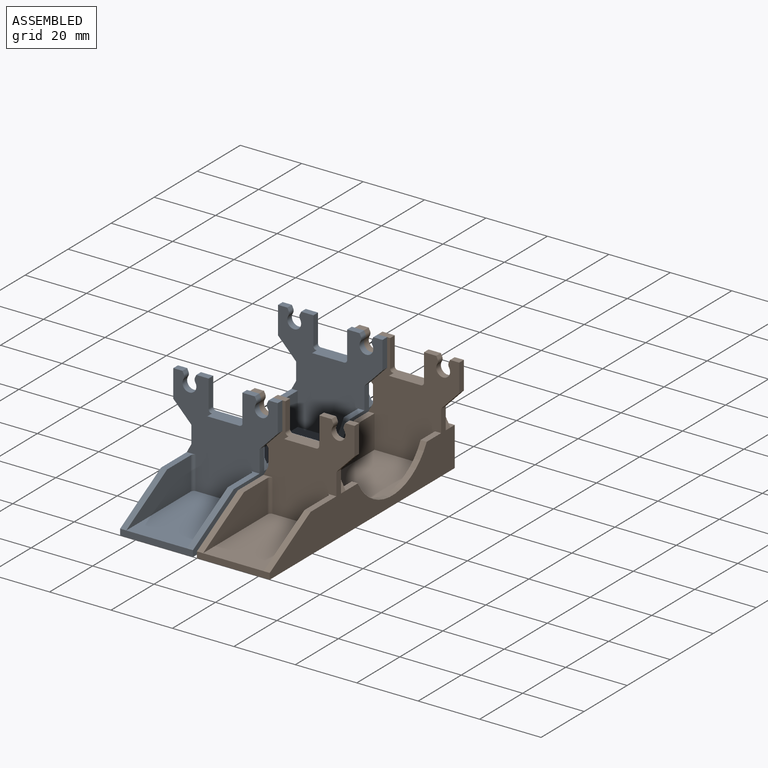
[diagram: assembled view]
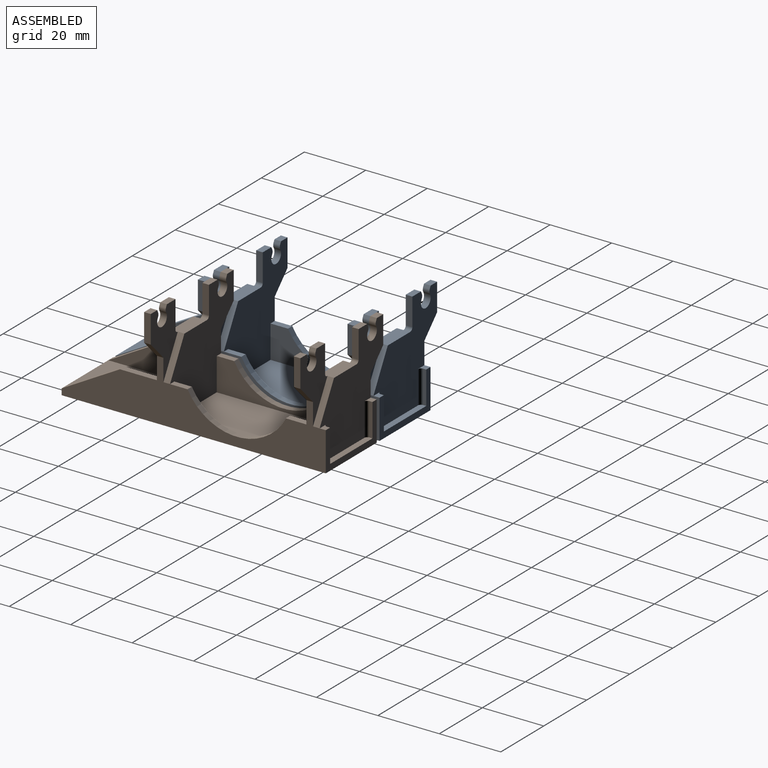
[diagram: assembled view, second angle]
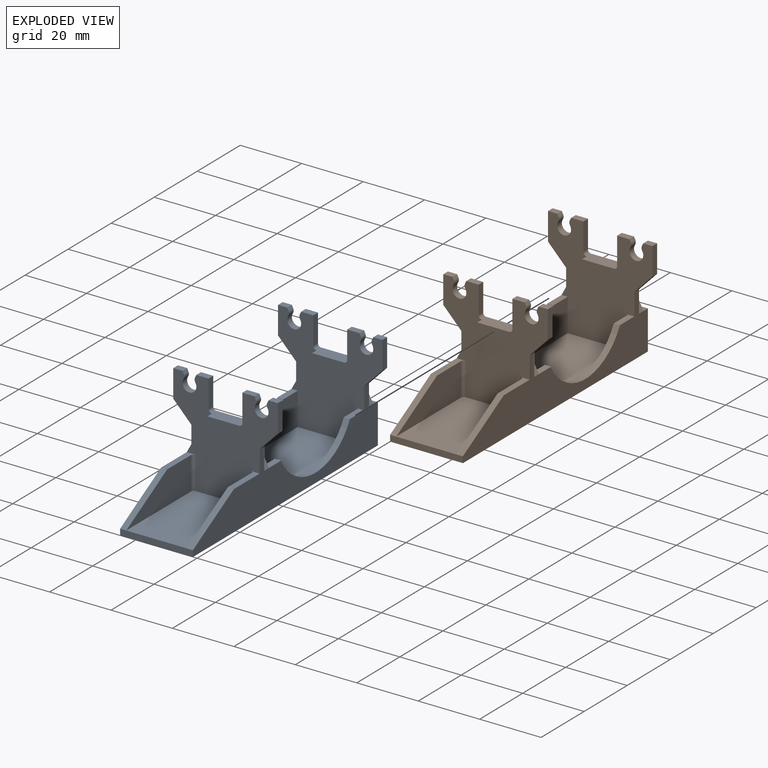
[diagram: exploded view]
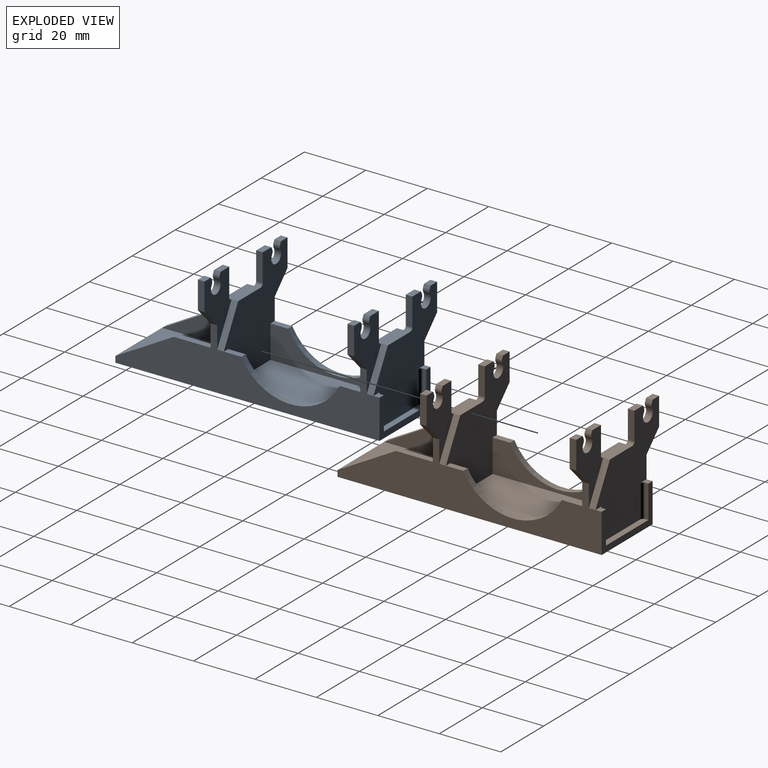
[diagram: exploded view, second angle]
ASSEMBLY  parts=2 mates=2
PART A: 88 faces, bbox 35.5x86x35 mm
  f0: plane 9x2.15mm, normal (1,0,0), area 19.4mm2, adj f2,f4,f21,f71
  f1: plane 4x2.15mm, normal (0,0,1), area 8.6mm2, adj f5,f6,f21,f71
  f2: plane 3x2.15mm, normal (0,0,1), area 6.4mm2, adj f0,f8,f21,f71
  f3: plane 10.5x4.3mm, normal (0,0,1), area 44.8mm2, adj f21,f57,f64,f65,f70,f71,f74,f75
  f4: plane 6.12x5.9mm, normal (0.72,0,-0.69), area 18.3mm2, adj f0,f21,f52,f71
  f5: plane 9x2.15mm, normal (-1,0,0), area 19.4mm2, adj f1,f21,f71,f75
  f6: plane 2.15x0.86mm, normal (0.9,0,0.44), area 2.1mm2, adj f1,f21,f71,f86
  f7: cylinder r=2.25mm len=4.5mm, axis (0,1,0), area 20.6mm2, adj f21,f71,f86,f87
  f8: plane 2.15x0.86mm, normal (-0.9,0,0.44), area 2.1mm2, adj f2,f21,f71,f87
  f9: plane 10.5x4.3mm, normal (0,0,1), area 44.8mm2, adj f15,f56,f66,f67,f68,f69,f72,f73
  f10: plane 6.12x5.9mm, normal (0.72,0,-0.69), area 18.3mm2, adj f15,f52,f61,f69
  f11: plane 9x2.15mm, normal (-1,0,0), area 19.3mm2, adj f15,f62,f69,f72
  f12: plane 2.15x0.86mm, normal (0.9,0,0.44), area 2.1mm2, adj f15,f62,f69,f82
  f13: cylinder r=2.25mm len=4.5mm, axis (0,1,0), area 20.6mm2, adj f15,f69,f82,f83
  f14: plane 2.15x0.86mm, normal (-0.9,0,0.44), area 2.1mm2, adj f15,f63,f69,f83
  f15: plane 33x29.6mm, normal (0,-1,0), area 566.9mm2, adj f9,f10,f11,f12,f13,f14,f31,f37
  f16: plane 6.12x5.9mm, normal (-0.72,0,-0.69), area 18.3mm2, adj f30,f56,f58,f67
  f17: plane 2.15x0.86mm, normal (0.9,0,0.44), area 2.1mm2, adj f56,f59,f67,f80
  f18: cylinder r=2.25mm len=4.5mm, axis (0,1,0), area 20.6mm2, adj f56,f67,f80,f81
  f19: plane 9x2.15mm, normal (1,0,0), area 19.3mm2, adj f56,f60,f67,f73
  f20: plane 2.15x0.86mm, normal (-0.9,0,0.44), area 2.1mm2, adj f56,f60,f67,f81
  f21: plane 33x29.6mm, normal (0,-1,0), area 545.5mm2, adj f0,f1,f2,f3,f4,f5,f6,f7
  f22: plane 6.12x5.9mm, normal (-0.72,0,-0.69), area 18.3mm2, adj f27,f30,f57,f65
  f23: plane 2.15x0.86mm, normal (0.9,0,0.44), area 2.1mm2, adj f28,f57,f65,f84
  f24: cylinder r=2.25mm len=4.5mm, axis (0,1,0), area 20.6mm2, adj f57,f65,f84,f85
  f25: plane 9x2.15mm, normal (1,0,0), area 19.4mm2, adj f29,f57,f65,f74
  f26: plane 2.15x0.86mm, normal (-0.9,0,0.44), area 2.1mm2, adj f29,f57,f65,f85
  f27: plane 9x2.15mm, normal (-1,0,0), area 19.4mm2, adj f22,f28,f57,f65
  f28: plane 3x2.15mm, normal (0,0,1), area 6.4mm2, adj f23,f27,f57,f65
  f29: plane 4x2.15mm, normal (0,0,1), area 8.6mm2, adj f25,f26,f57,f65
  f30: plane 86x19.88mm, normal (-1,0,0), area 800mm2, adj f16,f22,f34,f38,f41,f42,f44,f46
  f31: plane 44.4x19.7mm, normal (0,0,1), area 874.7mm2, adj f15,f37,f39,f57
  f32: plane 30x10.7mm, normal (1,0,0), area 219.4mm2, adj f34,f45,f48,f76
  f33: plane 30x10.7mm, normal (-1,0,0), area 219.4mm2, adj f35,f45,f54,f77
  f34: plane 12x3mm, normal (0,0,1), area 24.2mm2, adj f21,f30,f32,f48,f76
  f35: plane 12x3mm, normal (0,0,1), area 24.2mm2, adj f21,f33,f52,f54,f77
  f36: plane 19.7x2mm, normal (0,0,1), area 39mm2, adj f43,f47,f51,f56,f78,f79
  f37: plane 44.4x10.7mm, normal (1,0,0), area 253.6mm2, adj f15,f31,f38,f41,f49,f57
  f38: plane 6.7x2mm, normal (0,0,1), area 13.4mm2, adj f15,f30,f37,f49
  f39: plane 44.4x10.7mm, normal (-1,0,0), area 253.6mm2, adj f15,f31,f40,f50,f55,f57
  f40: plane 6.7x2mm, normal (0,0,1), area 13.4mm2, adj f15,f39,f52,f55
  f41: plane 5.7x2mm, normal (0,0,1), area 11.4mm2, adj f30,f37,f49,f57
  f42: plane 23.7x2mm, normal (0,-1,0), area 47.4mm2, adj f30,f44,f45,f48,f52,f54
  f43: plane 10.7x1mm, normal (1,0,0), area 10.7mm2, adj f36,f46,f47,f78
  f44: plane 86x23.7mm, normal (0,0,-1), area 2038.2mm2, adj f30,f42,f47,f52
  f45: plane 31x19.7mm, normal (0,0,1), area 610.3mm2, adj f21,f32,f33,f42,f76,f77
  f46: plane 3x2mm, normal (0,0,1), area 4.2mm2, adj f30,f43,f47,f56,f78
  f47: plane 23.7x12.7mm, normal (0,1,0), area 90.2mm2, adj f30,f36,f43,f44,f46,f51,f52,f53
  f48: plane 19x10.7mm, normal (0,-0.49,0.87), area 43.6mm2, adj f30,f32,f34,f42
  f49: cylinder r=18.05mm len=32mm, axis (-1,0,0), area 78.7mm2, adj f30,f37,f38,f41
  f50: plane 5.7x2mm, normal (0,0,1), area 11.4mm2, adj f39,f52,f55,f57
  f51: plane 10.7x1mm, normal (-1,0,0), area 10.7mm2, adj f36,f47,f53,f79
  f52: plane 86x19.88mm, normal (1,0,0), area 800mm2, adj f4,f10,f15,f21,f35,f40,f42,f44
  f53: plane 3x2mm, normal (0,0,1), area 4.2mm2, adj f47,f51,f52,f56,f79
  f54: plane 19x10.7mm, normal (0,-0.49,0.87), area 43.6mm2, adj f33,f35,f42,f52
  f55: cylinder r=18.05mm len=32mm, axis (1,0,0), area 78.7mm2, adj f39,f40,f50,f52
  f56: plane 33x29.6mm, normal (0,1,0), area 545.5mm2, adj f9,f16,f17,f18,f19,f20,f30,f36
  f57: plane 33x29.6mm, normal (0,1,0), area 566.9mm2, adj f3,f22,f23,f24,f25,f26,f27,f28
  f58: plane 9x2.15mm, normal (-1,0,0), area 19.3mm2, adj f16,f56,f59,f67
  f59: plane 3x2.15mm, normal (0,0,1), area 6.4mm2, adj f17,f56,f58,f67
  f60: plane 4x2.15mm, normal (0,0,1), area 8.6mm2, adj f19,f20,f56,f67
  f61: plane 9x2.15mm, normal (1,0,0), area 19.3mm2, adj f10,f15,f63,f69
  f62: plane 4x2.15mm, normal (0,0,1), area 8.6mm2, adj f11,f12,f15,f69
  f63: plane 3x2.15mm, normal (0,0,1), area 6.4mm2, adj f14,f15,f61,f69
  f64: plane 12.3x6.69mm, normal (-0.88,0,0.48), area 30.1mm2, adj f3,f21,f30,f65
  f65: plane 22.3x12.59mm, normal (0,-1,0), area 146.8mm2, adj f3,f22,f23,f24,f25,f26,f27,f28
  f66: plane 12.3x6.69mm, normal (-0.88,0,0.48), area 30.1mm2, adj f9,f15,f30,f67
  f67: plane 22.3x12.59mm, normal (0,-1,0), area 146.8mm2, adj f9,f16,f17,f18,f19,f20,f30,f58
  f68: plane 12.3x6.69mm, normal (0.88,0,0.48), area 30.1mm2, adj f9,f52,f56,f69
  f69: plane 22.3x12.59mm, normal (0,1,0), area 146.8mm2, adj f9,f10,f11,f12,f13,f14,f52,f61
  f70: plane 12.3x6.69mm, normal (0.88,0,0.48), area 30.1mm2, adj f3,f52,f57,f71
  f71: plane 22.3x12.59mm, normal (0,1,0), area 146.8mm2, adj f0,f1,f2,f3,f4,f5,f6,f7
  f72: cylinder r=1mm len=2.15mm, axis (0,-1,0), area 3.4mm2, adj f9,f11,f15,f69
  f73: cylinder r=1mm len=2.15mm, axis (0,1,0), area 3.4mm2, adj f9,f19,f56,f67
  f74: cylinder r=1mm len=2.15mm, axis (0,1,0), area 3.4mm2, adj f3,f25,f57,f65
  f75: cylinder r=1mm len=2.15mm, axis (0,-1,0), area 3.4mm2, adj f3,f5,f21,f71
  f76: cylinder r=1mm len=10.7mm, axis (0,0,1), area 16.8mm2, adj f21,f32,f34,f45
  f77: cylinder r=1mm len=10.7mm, axis (0,0,-1), area 16.8mm2, adj f21,f33,f35,f45
  f78: cylinder r=1mm len=10.7mm, axis (0,0,-1), area 16.8mm2, adj f36,f43,f46,f56
  f79: cylinder r=1mm len=10.7mm, axis (0,0,1), area 16.8mm2, adj f36,f51,f53,f56
  f80: cylinder r=1.5mm len=2.15mm, axis (0,1,0), area 3.3mm2, adj f17,f18,f56,f67
  f81: cylinder r=1.5mm len=2.15mm, axis (0,1,0), area 3.3mm2, adj f18,f20,f56,f67
  f82: cylinder r=1.5mm len=2.15mm, axis (0,1,0), area 3.3mm2, adj f12,f13,f15,f69
  f83: cylinder r=1.5mm len=2.15mm, axis (0,1,0), area 3.3mm2, adj f13,f14,f15,f69
  f84: cylinder r=1.5mm len=2.15mm, axis (0,1,0), area 3.3mm2, adj f23,f24,f57,f65
  f85: cylinder r=1.5mm len=2.15mm, axis (0,1,0), area 3.3mm2, adj f24,f26,f57,f65
  f86: cylinder r=1.5mm len=2.15mm, axis (0,1,0), area 3.3mm2, adj f6,f7,f21,f71
  f87: cylinder r=1.5mm len=2.15mm, axis (0,1,0), area 3.3mm2, adj f7,f8,f21,f71
PART B: same geometry as A
PLACE A t=(-11.12,43.05,-26.17)mm
PLACE B t=(13.88,43.05,-26.17)mm
MATE cylindrical A.f7 <-> B.f18  axis (0,1,0) through (1.38,-10.88,5.31)mm
MATE planar B.f42 <-> A.f42  axis (0,-1,0) through (13.88,-42.95,-25.17)mm
